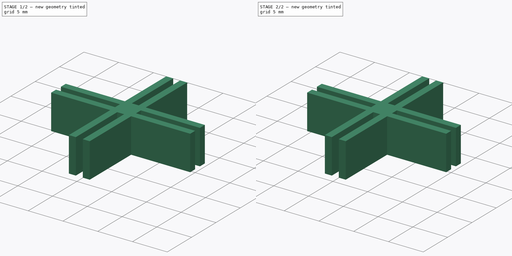
[diagram: build sequence overview — one tinted view per stage of 2, left to right]
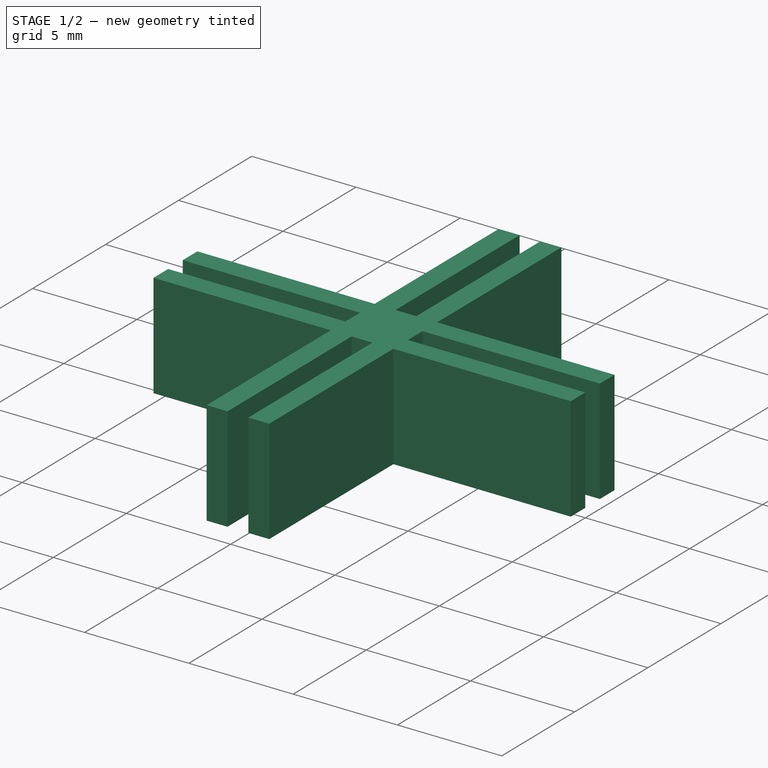
[diagram: stage 1 of 2 — iso view after this stage's code; geometry added in this stage tinted green]
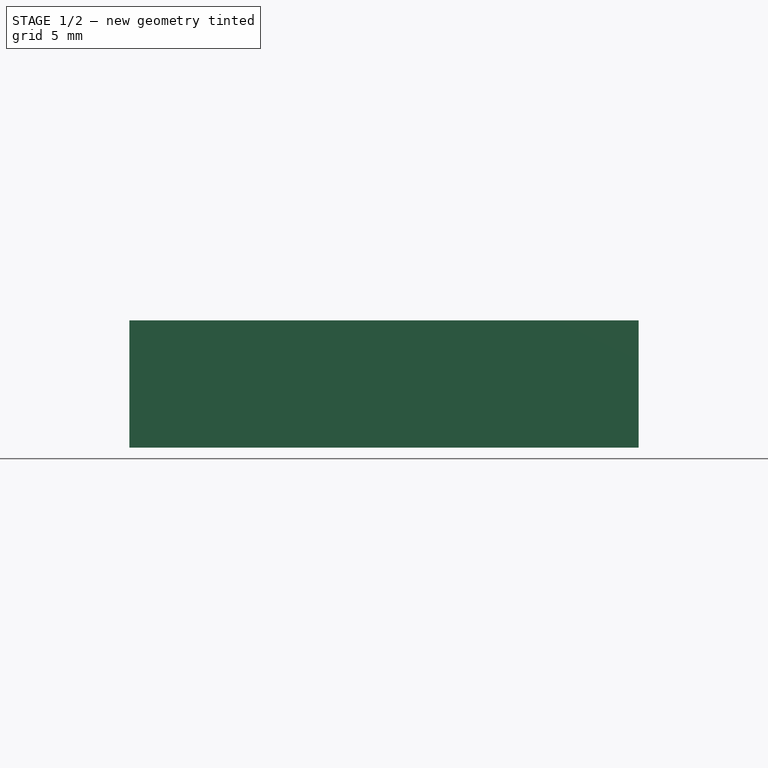
[diagram: stage 1 of 2 — front view after this stage's code; geometry added in this stage tinted green]
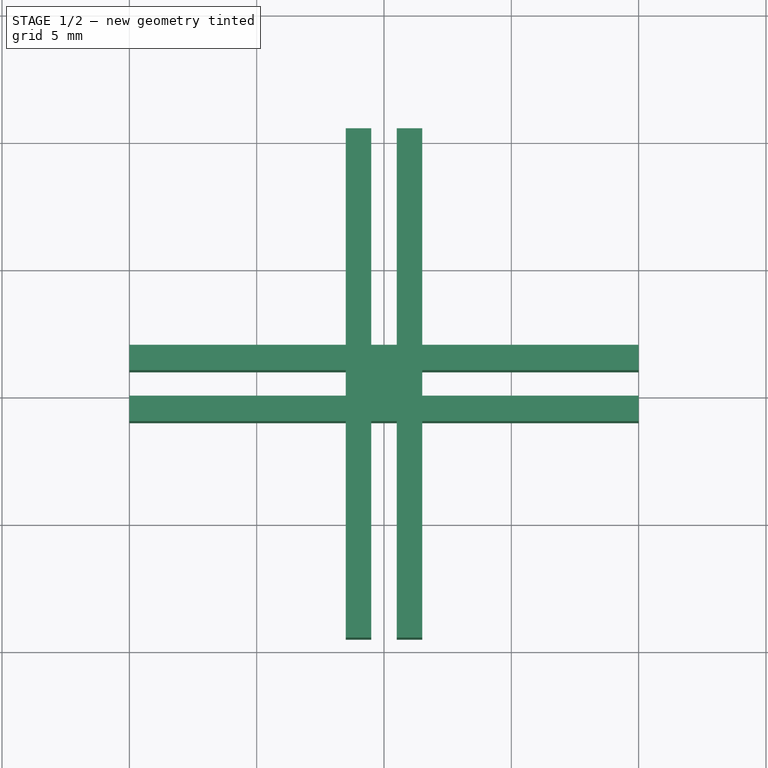
[diagram: stage 1 of 2 — top view after this stage's code; geometry added in this stage tinted green]
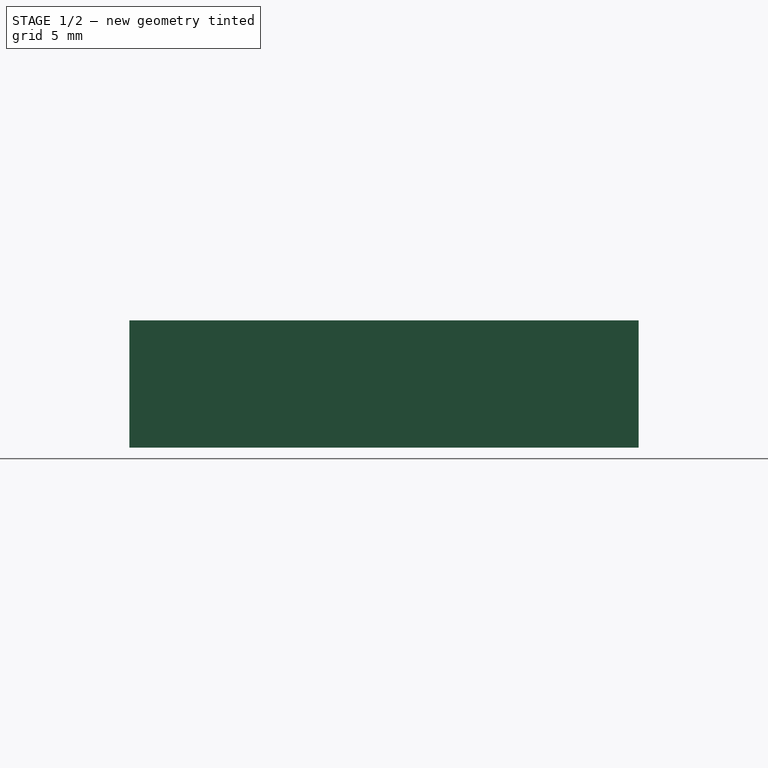
[diagram: stage 1 of 2 — right view after this stage's code; geometry added in this stage tinted green]
FCSTD DOCUMENT  (FreeCAD 0.20R29177 +426 (Git))
Label: rack
License: All rights reserved
LicenseURL: http://en.wikipedia.org/wiki/All_rights_reserved
objects: Sketcher::SketchObject×3, PartDesign::Pad×3, PartDesign::Body×3
note: 12 computed .brp shape members not serialized (recipe doc carries the construction recipe); baked Part::Feature solids carry a one-line shape summary decoded from their .brp

FEATURE [PartDesign::Body] Body  label="T"
  Group = -> [Sketch,Pad]
  Origin = -> Origin
  Tip = -> Pad
FEATURE [Sketcher::SketchObject] Sketch001
  FullyConstrained = true
  MapMode = 5
  Support = -> [XY_Plane001]
  sketch-geometry (14):
    g0: LineSegment StartX=-1.5 StartY=10.5 StartZ=0 EndX=-1.5 EndY=-1 EndZ=0
    g1: LineSegment StartX=-1.5 StartY=-1 StartZ=0 EndX=10 EndY=-1 EndZ=0
    g2: LineSegment StartX=10 StartY=-1 StartZ=0 EndX=10 EndY=0 EndZ=0
    g3: LineSegment StartX=10 StartY=0 StartZ=0 EndX=1.5 EndY=0 EndZ=0
    g4: LineSegment StartX=1.5 StartY=0 StartZ=0 EndX=1.5 EndY=1 EndZ=0
    g5: LineSegment StartX=1.5 StartY=1 StartZ=0 EndX=10 EndY=1 EndZ=0
    g6: LineSegment StartX=10 StartY=1 StartZ=0 EndX=10 EndY=2 EndZ=0
    g7: LineSegment StartX=10 StartY=2 StartZ=0 EndX=1.5 EndY=2 EndZ=0
    g8: LineSegment StartX=1.5 StartY=2 StartZ=0 EndX=1.5 EndY=10.5 EndZ=0
    g9: LineSegment StartX=1.5 StartY=10.5 StartZ=0 EndX=0.5 EndY=10.5 EndZ=0
    g10: LineSegment StartX=0.5 StartY=10.5 StartZ=0 EndX=0.5 EndY=2 EndZ=0
    g11: LineSegment StartX=0.5 StartY=2 StartZ=0 EndX=-0.5 EndY=2 EndZ=0
    g12: LineSegment StartX=-0.5 StartY=2 StartZ=0 EndX=-0.5 EndY=10.5 EndZ=0
    g13: LineSegment StartX=-0.5 StartY=10.5 StartZ=0 EndX=-1.5 EndY=10.5 EndZ=0
  constraints (42):
    c: Vertical(g0)
    c: Coincident(g0,g1)
    c: Horizontal(g1)
    c: Coincident(g1,g2)
    c: PointOnObject(g2,g-1)
    c: Vertical(g2)
    c: Coincident(g2,g3)
    c: PointOnObject(g3,g-1)
    c: Coincident(g3,g4)
    c: Vertical(g4)
    c: Coincident(g4,g5)
    c: Horizontal(g5)
    c: Coincident(g5,g6)
    c: Vertical(g6)
    c: Coincident(g6,g7)
    c: Horizontal(g7)
    c: Coincident(g7,g8)
    c: Vertical(g8)
    c: Coincident(g8,g9)
    c: Horizontal(g9)
    c: Coincident(g9,g10)
    c: Vertical(g10)
    c: Coincident(g10,g11)
    c: Coincident(g11,g12)
    c: Vertical(g12)
    c: Coincident(g12,g13)
    c: Coincident(g13,g0)
    c: Horizontal(g13)
    c: Equal(g2,g4)
    c: Equal(g4,g6)
    c: Equal(g6,g11)
    c: Equal(g11,g13)
    c: Equal(g13,g9)
    c: Horizontal(g11)
    c: Equal(g12,g10)
    c: Equal(g10,g8)
    c: Equal(g8,g7)
    c: Equal(g7,g5)
    c: Equal(g5,g3)
    c: DistanceY(g6,g6) = 1
    c: DistanceY(g8,g8) = 8.5
    c: DistanceX(g-1,g3) = 1.5
FEATURE [PartDesign::Pad] Pad001
  Direction = (0,0,1)
  Length = 5
  Length2 = 10
  Profile = -> Sketch001
  ReferenceAxis = -> Sketch001 [N_Axis]
  Type = 0
FEATURE [PartDesign::Body] Body001  label="L"
  Group = -> [Sketch001,Pad001]
  Origin = -> Origin001
  Tip = -> Pad001
FEATURE [Sketcher::SketchObject] Sketch002
  FullyConstrained = true
  MapMode = 5
  Support = -> [XY_Plane002]
  sketch-geometry (28):
    g0: LineSegment StartX=-1.5 StartY=10.5 StartZ=0 EndX=-1.5 EndY=2 EndZ=0
    g1: LineSegment StartX=-1.5 StartY=2 StartZ=0 EndX=-10 EndY=2 EndZ=0
    g2: LineSegment StartX=-10 StartY=2 StartZ=0 EndX=-10 EndY=1 EndZ=0
    g3: LineSegment StartX=-10 StartY=1 StartZ=0 EndX=-1.5 EndY=1 EndZ=0
    g4: LineSegment StartX=-1.5 StartY=1 StartZ=0 EndX=-1.5 EndY=0 EndZ=0
    g5: LineSegment StartX=-1.5 StartY=0 StartZ=0 EndX=-10 EndY=0 EndZ=0
    g6: LineSegment StartX=-10 StartY=0 StartZ=0 EndX=-10 EndY=-1 EndZ=0
    g7: LineSegment StartX=-10 StartY=-1 StartZ=0 EndX=-1.5 EndY=-1 EndZ=0
    g8: LineSegment StartX=-1.5 StartY=-1 StartZ=0 EndX=-1.5 EndY=-9.5 EndZ=0
    g9: LineSegment StartX=-1.5 StartY=-9.5 StartZ=0 EndX=-0.5 EndY=-9.5 EndZ=0
    g10: LineSegment StartX=-0.5 StartY=-9.5 StartZ=0 EndX=-0.5 EndY=-1 EndZ=0
    g11: LineSegment StartX=-0.5 StartY=-1 StartZ=0 EndX=0.5 EndY=-1 EndZ=0
    g12: LineSegment StartX=0.5 StartY=-1 StartZ=0 EndX=0.5 EndY=-9.5 EndZ=0
    g13: LineSegment StartX=0.5 StartY=-9.5 StartZ=0 EndX=1.5 EndY=-9.5 EndZ=0
    g14: LineSegment StartX=1.5 StartY=-9.5 StartZ=0 EndX=1.5 EndY=-1 EndZ=0
    g15: LineSegment StartX=1.5 StartY=-1 StartZ=0 EndX=10 EndY=-1 EndZ=0
    g16: LineSegment StartX=10 StartY=-1 StartZ=0 EndX=10 EndY=0 EndZ=0
    g17: LineSegment StartX=10 StartY=0 StartZ=0 EndX=1.5 EndY=0 EndZ=0
    g18: LineSegment StartX=1.5 StartY=0 StartZ=0 EndX=1.5 EndY=1 EndZ=0
    g19: LineSegment StartX=1.5 StartY=1 StartZ=0 EndX=10 EndY=1 EndZ=0
    g20: LineSegment StartX=10 StartY=1 StartZ=0 EndX=10 EndY=2 EndZ=0
    g21: LineSegment StartX=10 StartY=2 StartZ=0 EndX=1.5 EndY=2 EndZ=0
    g22: LineSegment StartX=1.5 StartY=2 StartZ=0 EndX=1.5 EndY=10.5 EndZ=0
    g23: LineSegment StartX=1.5 StartY=10.5 StartZ=0 EndX=0.5 EndY=10.5 EndZ=0
    g24: LineSegment StartX=0.5 StartY=10.5 StartZ=0 EndX=0.5 EndY=2 EndZ=0
    g25: LineSegment StartX=0.5 StartY=2 StartZ=0 EndX=-0.5 EndY=2 EndZ=0
    g26: LineSegment StartX=-0.5 StartY=2 StartZ=0 EndX=-0.5 EndY=10.5 EndZ=0
    g27: LineSegment StartX=-0.5 StartY=10.5 StartZ=0 EndX=-1.5 EndY=10.5 EndZ=0
  constraints (84):
    c: Vertical(g0)
    c: Coincident(g0,g1)
    c: Horizontal(g1)
    c: Coincident(g1,g2)
    c: Coincident(g2,g3)
    c: Horizontal(g3)
    c: Coincident(g3,g4)
    c: PointOnObject(g4,g-1)
    c: Coincident(g4,g5)
    c: PointOnObject(g5,g-1)
    c: Coincident(g5,g6)
    c: Vertical(g6)
    c: Coincident(g6,g7)
    c: Horizontal(g7)
    c: Coincident(g7,g8)
    c: Vertical(g8)
    c: Coincident(g8,g9)
    c: Coincident(g9,g10)
    c: Vertical(g10)
    c: Coincident(g10,g11)
    c: Coincident(g11,g12)
    c: Vertical(g12)
    c: Coincident(g12,g13)
    c: Coincident(g13,g14)
    c: Vertical(g14)
    c: Coincident(g14,g15)
    c: Horizontal(g15)
    c: Coincident(g15,g16)
    c: PointOnObject(g16,g-1)
    c: Coincident(g16,g17)
    c: PointOnObject(g17,g-1)
    c: Coincident(g17,g18)
    c: Coincident(g18,g19)
    c: Horizontal(g19)
    c: Coincident(g19,g20)
    c: Coincident(g20,g21)
    c: Horizontal(g21)
    c: Coincident(g21,g22)
    c: Vertical(g22)
    c: Coincident(g22,g23)
    c: Coincident(g23,g24)
    c: Vertical(g24)
    c: Coincident(g24,g25)
    c: Horizontal(g25)
    c: Coincident(g25,g26)
    c: Vertical(g26)
    c: Coincident(g26,g27)
    c: Coincident(g27,g0)
    c: Vertical(g2)
    c: Vertical(g4)
    c: Vertical(g18)
    c: Vertical(g20)
    c: Vertical(g16)
    c: Horizontal(g23)
    c: Horizontal(g13)
    c: Horizontal(g9)
    c: Horizontal(g11)
    c: Equal(g2,g6)
    c: Equal(g6,g4)
    c: Equal(g4,g18)
    c: Equal(g18,g25)
    c: Equal(g25,g27)
    c: Equal(g27,g23)
    c: Equal(g23,g20)
    c: Equal(g20,g16)
    c: Equal(g16,g13)
    c: Equal(g13,g9)
    c: Equal(g9,g11)
    c: DistanceY(g20,g20) = 1
    c: DistanceY(g10,g4) = 1
    c: DistanceX(g11,g17) = 1
    c: DistanceX(g24,g18) = 1
    c: DistanceX(g3,g25) = 1
    c: DistanceY(g3,g25) = 1
    c: DistanceX(g-1,g17) = 1.5
    c: DistanceX(g21,g21) = 8.5
    c: Equal(g8,g7)
    c: Equal(g5,g3)
    c: Equal(g3,g1)
    c: DistanceX(g1,g1) = 8.5
    c: DistanceY(g0,g0) = 8.5
    c: DistanceY(g14,g14) = 8.5
    c: DistanceX(g15,g15) = 8.5
    c: DistanceY(g22,g22) = 8.5
FEATURE [PartDesign::Pad] Pad002
  Direction = (0,0,1)
  Length = 5
  Length2 = 10
  Profile = -> Sketch002
  ReferenceAxis = -> Sketch002 [N_Axis]
  Type = 0
FEATURE [PartDesign::Body] Body002
  Group = -> [Sketch002,Pad002]
  Origin = -> Origin002
  Tip = -> Pad002
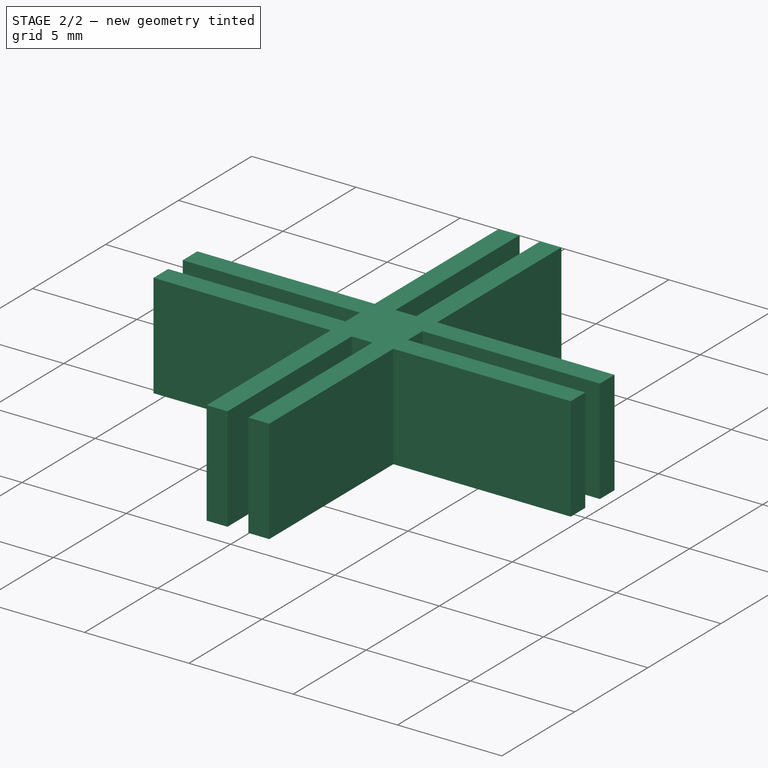
[diagram: stage 2 of 2 — iso view after this stage's code; geometry added in this stage tinted green]
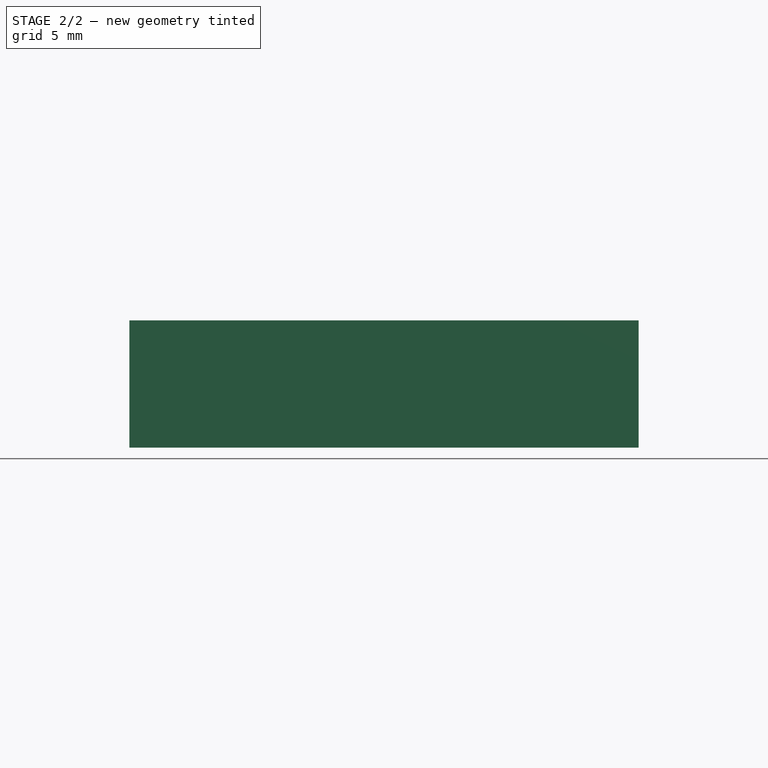
[diagram: stage 2 of 2 — front view after this stage's code; geometry added in this stage tinted green]
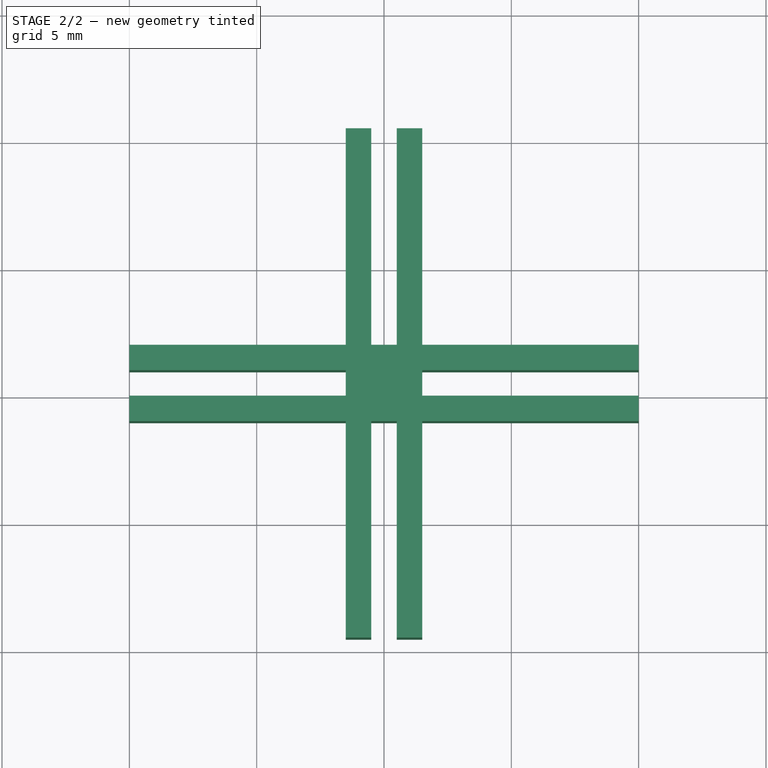
[diagram: stage 2 of 2 — top view after this stage's code; geometry added in this stage tinted green]
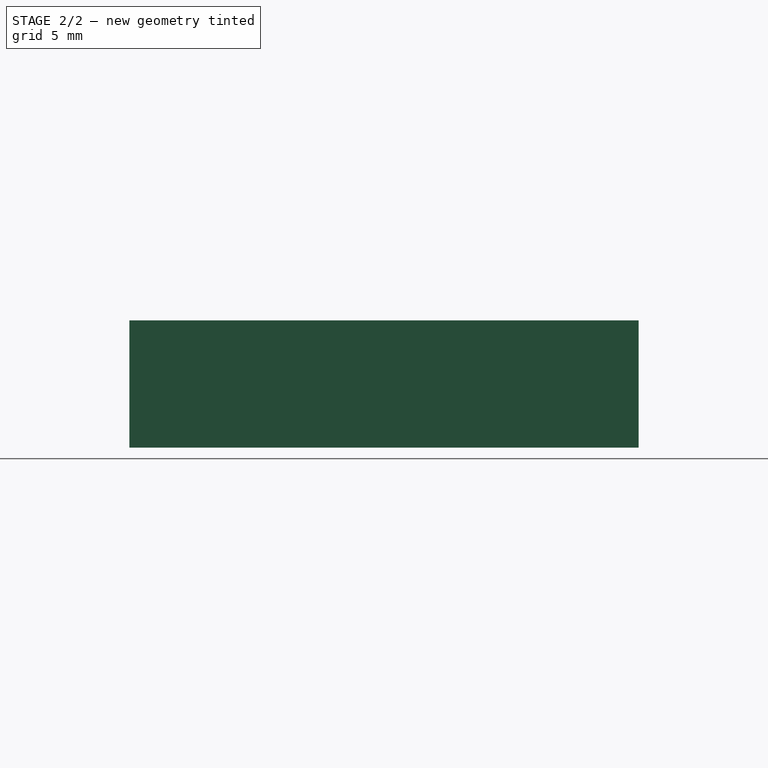
[diagram: stage 2 of 2 — right view after this stage's code; geometry added in this stage tinted green]
FEATURE [Sketcher::SketchObject] Sketch
  FullyConstrained = true
  MapMode = 5
  Support = -> [XY_Plane]
  sketch-geometry (20):
    g0: LineSegment StartX=-1.5 StartY=10.5 StartZ=0 EndX=-1.5 EndY=2 EndZ=0
    g1: LineSegment StartX=-1.5 StartY=2 StartZ=0 EndX=-10 EndY=2 EndZ=0
    g2: LineSegment StartX=-10 StartY=2 StartZ=0 EndX=-10 EndY=1 EndZ=0
    g3: LineSegment StartX=-10 StartY=1 StartZ=0 EndX=-1.5 EndY=1 EndZ=0
    g4: LineSegment StartX=-1.5 StartY=1 StartZ=0 EndX=-1.5 EndY=0 EndZ=0
    g5: LineSegment StartX=-1.5 StartY=0 StartZ=0 EndX=-10 EndY=0 EndZ=0
    g6: LineSegment StartX=-10 StartY=0 StartZ=0 EndX=-10 EndY=-1 EndZ=0
    g7: LineSegment StartX=-10 StartY=-1 StartZ=0 EndX=10 EndY=-1 EndZ=0
    g8: LineSegment StartX=10 StartY=-1 StartZ=0 EndX=10 EndY=0 EndZ=0
    g9: LineSegment StartX=10 StartY=0 StartZ=0 EndX=1.5 EndY=0 EndZ=0
    g10: LineSegment StartX=1.5 StartY=0 StartZ=0 EndX=1.5 EndY=1 EndZ=0
    g11: LineSegment StartX=1.5 StartY=1 StartZ=0 EndX=10 EndY=1 EndZ=0
    g12: LineSegment StartX=10 StartY=1 StartZ=0 EndX=10 EndY=2 EndZ=0
    g13: LineSegment StartX=10 StartY=2 StartZ=0 EndX=1.5 EndY=2 EndZ=0
    g14: LineSegment StartX=1.5 StartY=2 StartZ=0 EndX=1.5 EndY=10.5 EndZ=0
    g15: LineSegment StartX=1.5 StartY=10.5 StartZ=0 EndX=0.5 EndY=10.5 EndZ=0
    g16: LineSegment StartX=0.5 StartY=10.5 StartZ=0 EndX=0.5 EndY=2 EndZ=0
    g17: LineSegment StartX=0.5 StartY=2 StartZ=0 EndX=-0.5 EndY=2 EndZ=0
    g18: LineSegment StartX=-0.5 StartY=2 StartZ=0 EndX=-0.5 EndY=10.5 EndZ=0
    g19: LineSegment StartX=-0.5 StartY=10.5 StartZ=0 EndX=-1.5 EndY=10.5 EndZ=0
  constraints (59):
    c: Vertical(g0)
    c: Coincident(g0,g1)
    c: Horizontal(g1)
    c: Coincident(g1,g2)
    c: Coincident(g2,g3)
    c: Horizontal(g3)
    c: Coincident(g3,g4)
    c: Vertical(g4)
    c: Coincident(g4,g5)
    c: Horizontal(g5)
    c: Coincident(g5,g6)
    c: Vertical(g6)
    c: Coincident(g6,g7)
    c: Horizontal(g7)
    c: Coincident(g7,g8)
    c: Coincident(g8,g9)
    c: Horizontal(g9)
    c: Coincident(g9,g10)
    c: Vertical(g10)
    c: Coincident(g10,g11)
    c: Horizontal(g11)
    c: Coincident(g11,g12)
    c: Vertical(g12)
    c: Coincident(g12,g13)
    c: Horizontal(g13)
    c: Coincident(g13,g14)
    c: Vertical(g14)
    c: Coincident(g14,g15)
    c: Horizontal(g15)
    c: Coincident(g15,g16)
    c: Vertical(g16)
    c: Coincident(g16,g17)
    c: Coincident(g17,g18)
    c: Vertical(g18)
    c: Coincident(g18,g19)
    c: Coincident(g19,g0)
    c: Horizontal(g19)
    c: Equal(g2,g6)
    c: Equal(g6,g8)
    c: Equal(g8,g12)
    c: Equal(g12,g15)
    c: Equal(g15,g19)
    c: DistanceX(g15,g15) = 1
    c: Horizontal(g17)
    c: Equal(g4,g17)
    c: Equal(g17,g10)
    c: DistanceY(g4,g4) = 1
    c: Vertical(g2)
    c: Vertical(g8)
    c: DistanceX(g3,g10) = 3
    c: Symmetric(g4,g9,g-1)
    c: DistanceX(g13,g10) = 0
    c: DistanceX(g7,g7) = 20
    c: Equal(g9,g5)
    c: DistanceX(g8,g11) = 0
    c: DistanceX(g5,g2) = 0
    c: Equal(g1,g0)
    c: Equal(g0,g18)
    c: Equal(g18,g16)
FEATURE [PartDesign::Pad] Pad
  Direction = (0,0,1)
  Length = 5
  Length2 = 10
  Profile = -> Sketch
  ReferenceAxis = -> Sketch [N_Axis]
  Type = 0
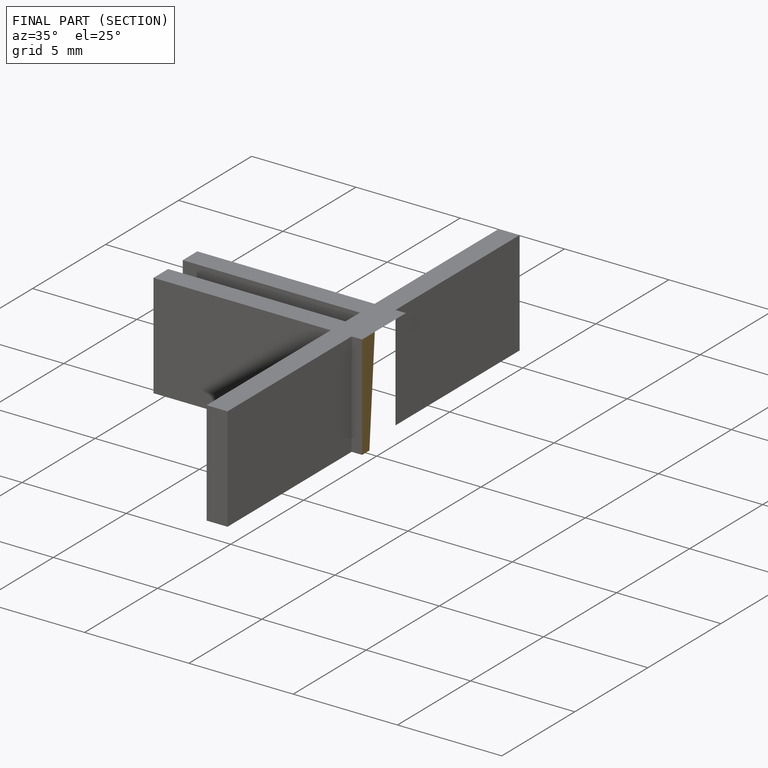
[diagram: finished part — half-section view (interior)]
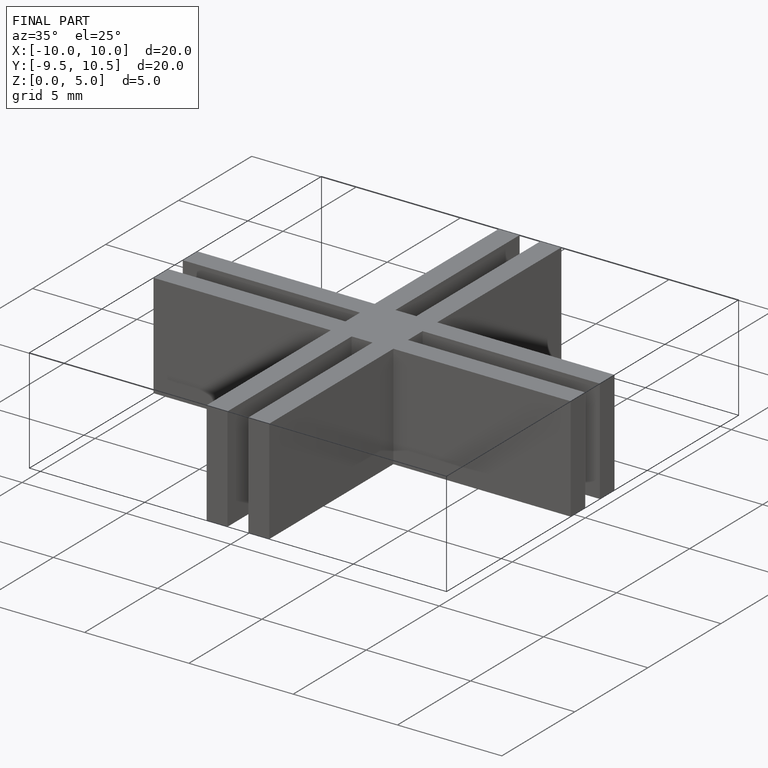
[diagram: finished part — iso view with bounding-box wireframe]
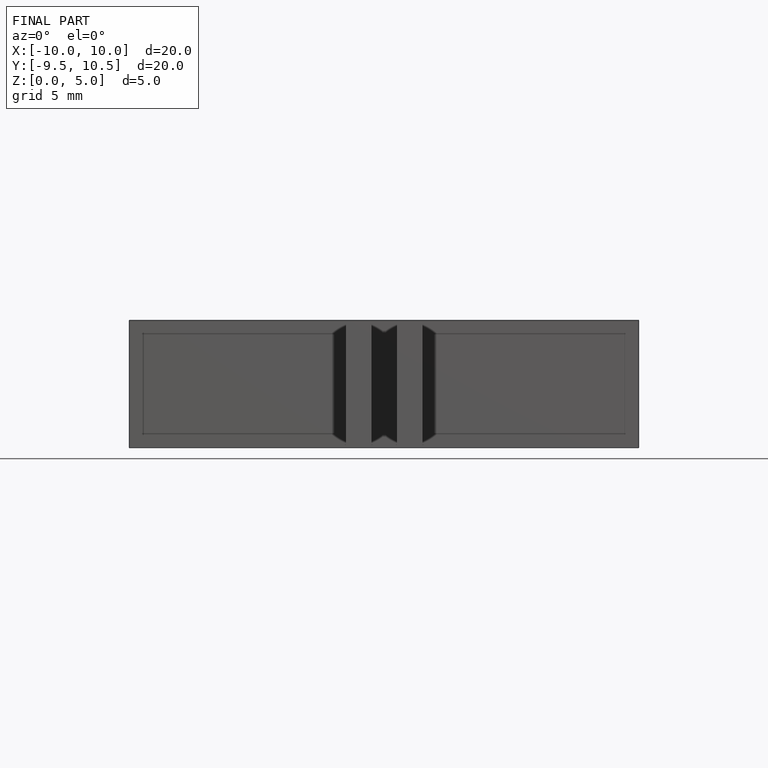
[diagram: finished part — front view with bounding-box wireframe]
